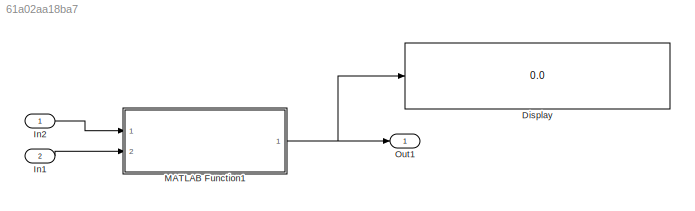
MODEL slx_61a02aa18ba7
KIND model
CONFIG AbsTol = auto
CONFIG EnableMultiTasking = off
CONFIG FixedStep = auto
CONFIG MaxStep = auto
CONFIG MinStep = auto
CONFIG RelTol = 1e-3
CONFIG SampleTimeConstraint = Unconstrained
CONFIG Solver = VariableStepAuto
CONFIG SolverName = VariableStepAuto
CONFIG StartTime = 0.0
CONFIG StopTime = 10.0
BLOCK [Display] Display
  Decimation = 1
  Ports = [1]
BLOCK [Inport] In1
  IconDisplay = Port number
  OutDataTypeStr = double
  Port = 2
  PortDimensions = 3
BLOCK [Inport] In2
  IconDisplay = Port number
  OutDataTypeStr = double
  PortDimensions = 1
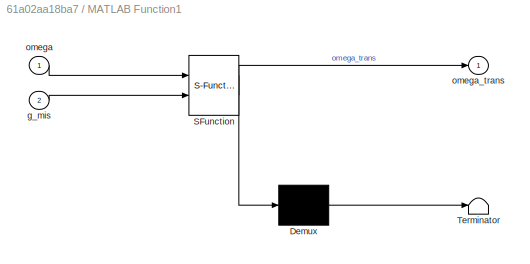
BLOCK [SubSystem] MATLAB Function1
  ErrorFcn = Stateflow.Translate.translate
  PermitHierarchicalResolution = ExplicitOnly
  Ports = [2, 1]
  RequestExecContextInheritance = off
  SFBlockType = MATLAB Function
  TreatAsAtomicUnit = on
  Variant = off
BLOCK [Demux] MATLAB Function1/ Demux 
  Outputs = 1
  Ports = [1, 1]
BLOCK [S-Function] MATLAB Function1/ SFunction 
  EnableBusSupport = off
  FunctionName = sf_sfun
  PortCounts = [2 2]
  Ports = [2, 2]
  SFcnIsStateOwnerBlock = off
  SFunctionDeploymentMode = off
  Tag = Stateflow S-Function bio_matfunc_misalign_transform 2
BLOCK [Terminator] MATLAB Function1/ Terminator 
BLOCK [Inport] MATLAB Function1/g_mis
  IconDisplay = Port number
  Port = 2
BLOCK [Inport] MATLAB Function1/omega
  IconDisplay = Port number
BLOCK [Outport] MATLAB Function1/omega_trans
  IconDisplay = Port number
BLOCK [Outport] Out1
  IconDisplay = Port number
LINE In1:1 -> MATLAB Function1:2
LINE In2:1 -> MATLAB Function1:1
NET MATLAB Function1:1 -> Display:1, Out1:1
note: NET lines group one-source signal fan-out (src -> all destinations, sorted); 1:1 wires keep LINE
CHART MATLAB Function1 states=1 transitions=1
  STATE_LABEL 'eML_blk_kernel()'
  STATE_LABEL 'SCRIPT:\nfunction omega_trans = misalign_transform(omega,g_mis)\n%#codegen\n\nx = g_mis(1);\ny = g_mis(2);\nz = g_mis(3);\n\nR = eye(3) - [0 -z y; z 0 -x; -y x 0];\n\nomega_trans = R*omega;'
